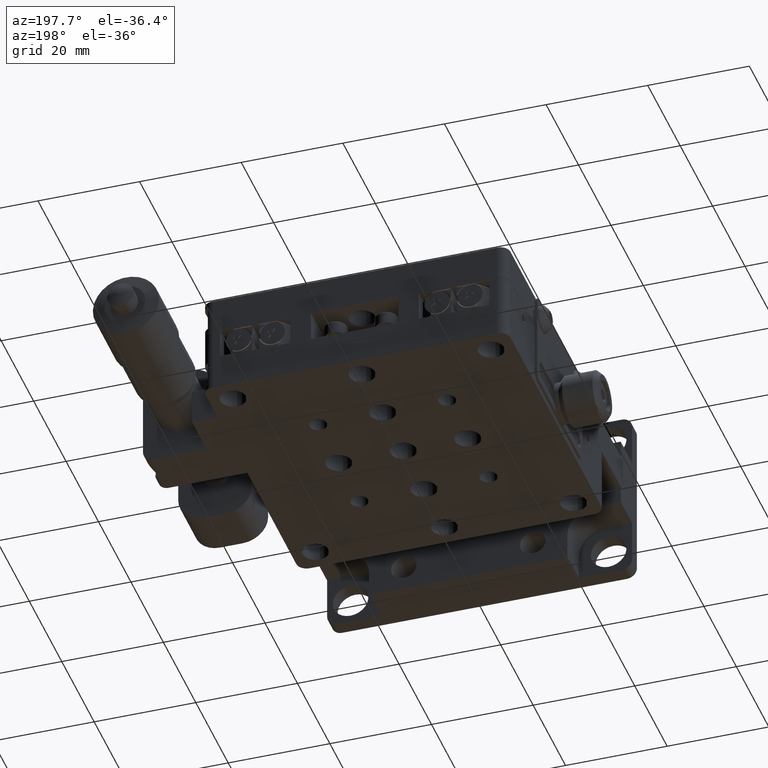
[diagram: clean part render]
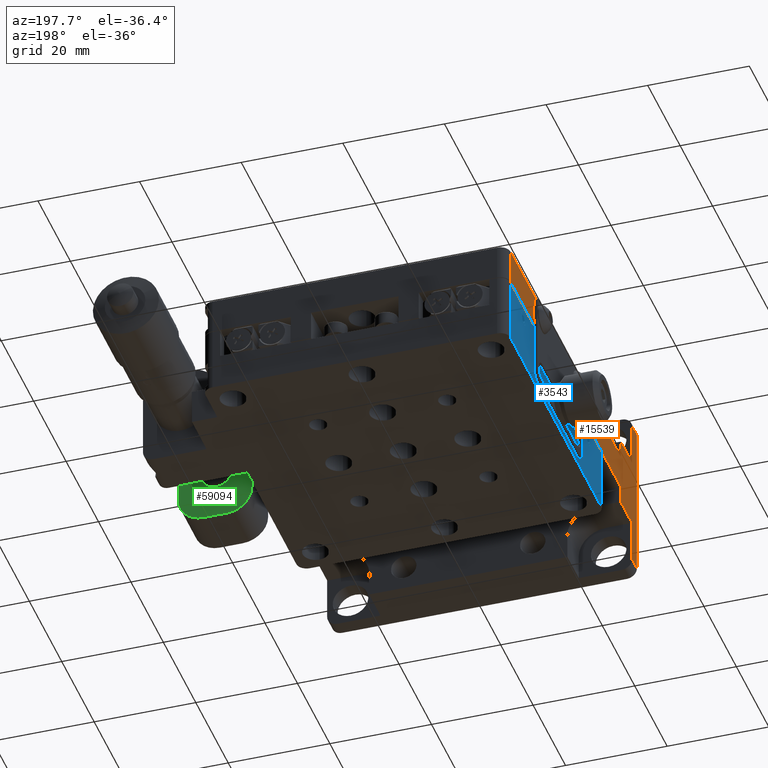
[diagram: same view with three faces highlighted in distinct colors, each labeled with its STEP entity id]
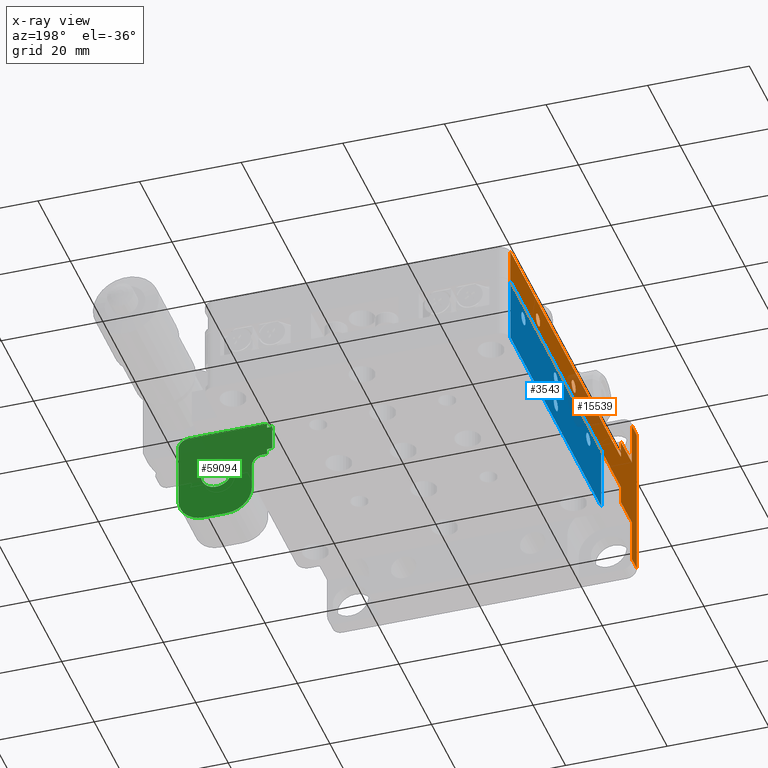
[diagram: x-ray of the same camera — body ghosted, the three highlighted faces saturated]
A machine part, auxiliary view with three faces highlighted in distinct colors.
The next image is the same camera in x-ray (body ghosted, the three faces saturated) — at least one of them is partly hidden behind the body in this view.
Their STEP definitions:

[orange] entity #15539 — the highlighted planar face has unit normal (1, 0, -0).
#170 = CARTESIAN_POINT ( 'NONE',  ( -30.00000000000000000, 29.00000000000000700, -0.4999999999996801400 ) ) ;
#2410 = VERTEX_POINT ( 'NONE', #57493 ) ;
#2924 = EDGE_CURVE ( 'NONE', #39045, #54760, #55046, .T. ) ;
#4068 = DIRECTION ( 'NONE',  ( -1.026956297779327700E-015, 1.000000000000000000, 1.059534132045691100E-014 ) ) ;
#4932 = DIRECTION ( 'NONE',  ( 1.000000000000000000, 1.026956297779341900E-015, -1.336419442155414700E-015 ) ) ;
#5149 = EDGE_CURVE ( 'NONE', #59992, #59439, #14396, .T. ) ;
#5325 = LINE ( 'NONE', #13381, #32409 ) ;
#6712 = LINE ( 'NONE', #32723, #35981 ) ;
#6784 = AXIS2_PLACEMENT_3D ( 'NONE', #31966, #40786, #12791 ) ;
#7963 = ORIENTED_EDGE ( 'NONE', *, *, #2924, .T. ) ;
#8512 = CIRCLE ( 'NONE', #18903, 1.249999999999990700 ) ;
#10334 = CIRCLE ( 'NONE', #6784, 1.249999999999987100 ) ;
#10519 = DIRECTION ( 'NONE',  ( 1.091490082325969300E-015, -1.299185760018476600E-014, -1.000000000000000000 ) ) ;
#10525 = CARTESIAN_POINT ( 'NONE',  ( -30.00000000000006000, -6.999999999999772600, 15.49999999999996800 ) ) ;
#10960 = EDGE_CURVE ( 'NONE', #43468, #51199, #41109, .T. ) ;
#11152 = DIRECTION ( 'NONE',  ( -1.026956297779327700E-015, 1.000000000000000000, 1.059534132045691100E-014 ) ) ;
#11304 = VERTEX_POINT ( 'NONE', #45035 ) ;
#11508 = DIRECTION ( 'NONE',  ( 1.026956297779327700E-015, -1.000000000000000000, -1.059534132045691100E-014 ) ) ;
#11922 = EDGE_LOOP ( 'NONE', ( #44451, #24397 ) ) ;
#12143 = EDGE_CURVE ( 'NONE', #39488, #11304, #10334, .T. ) ;
#12584 = CARTESIAN_POINT ( 'NONE',  ( -30.00000000000006000, -9.999999999999788600, 15.49999999999993800 ) ) ;
#12791 = DIRECTION ( 'NONE',  ( 0.0000000000000000000, -1.000000000000000000, -1.058181320345863200E-014 ) ) ;
#13221 = VECTOR ( 'NONE', #47486, 1000.000000000000000 ) ;
#13381 = CARTESIAN_POINT ( 'NONE',  ( -30.00000000000000000, -7.000000000000056800, -7.000000000000042600 ) ) ;
#13573 = CARTESIAN_POINT ( 'NONE',  ( -30.00000000000000000, 51.00000000000000700, -0.4999999999994478300 ) ) ;
#13980 = CARTESIAN_POINT ( 'NONE',  ( -30.00000000000000000, 1.217516921346730800E-013, 7.000000000000041700 ) ) ;
#14396 = LINE ( 'NONE', #15466, #29650 ) ;
#14952 = CARTESIAN_POINT ( 'NONE',  ( -29.99999999999993600, -7.000000000000163400, -15.50000000000004600 ) ) ;
#15119 = EDGE_LOOP ( 'NONE', ( #34626, #7963, #54953, #46326, #27960, #53234, #60846, #45271, #42608, #50538, #26469, #53047 ) ) ;
#15466 = CARTESIAN_POINT ( 'NONE',  ( -30.00000000000000000, 1.217516921346730800E-013, 7.000000000000041700 ) ) ;
#15539 = ADVANCED_FACE ( 'NONE', ( #21904, #53479, #41702 ), #28050, .F. ) ;
#17621 = CARTESIAN_POINT ( 'NONE',  ( -29.99999999999993600, -10.00000000000017900, -15.50000000000007800 ) ) ;
#17769 = EDGE_CURVE ( 'NONE', #35793, #53280, #42977, .T. ) ;
#18261 = DIRECTION ( 'NONE',  ( -1.026956297779327700E-015, 1.000000000000000000, 1.059534132045691100E-014 ) ) ;
#18500 = VECTOR ( 'NONE', #37574, 1000.000000000000000 ) ;
#18903 = AXIS2_PLACEMENT_3D ( 'NONE', #54827, #26273, #50090 ) ;
#20190 = AXIS2_PLACEMENT_3D ( 'NONE', #37855, #4932, #41602 ) ;
#20886 = CARTESIAN_POINT ( 'NONE',  ( -29.99999999999993600, -7.000000000000163400, -15.50000000000004800 ) ) ;
#20963 = DIRECTION ( 'NONE',  ( 1.026956297779327700E-015, -1.000000000000000000, -1.059534132045691100E-014 ) ) ;
#21084 = CARTESIAN_POINT ( 'NONE',  ( -30.00000000000000000, 7.628019053402616300E-014, 3.500000000000028000 ) ) ;
#21235 = VECTOR ( 'NONE', #11152, 1000.000000000000000 ) ;
#21662 = EDGE_CURVE ( 'NONE', #56999, #59439, #5325, .T. ) ;
#21904 = FACE_BOUND ( 'NONE', #39095, .T. ) ;
#22271 = VECTOR ( 'NONE', #49643, 1000.000000000000000 ) ;
#22499 = CARTESIAN_POINT ( 'NONE',  ( -30.00000000000000000, -7.000000000000056800, -7.000000000000042600 ) ) ;
#23506 = CARTESIAN_POINT ( 'NONE',  ( -29.99999999999993600, -7.000000000000198100, -17.50000000000008200 ) ) ;
#24397 = ORIENTED_EDGE ( 'NONE', *, *, #12143, .F. ) ;
#25102 = EDGE_CURVE ( 'NONE', #46332, #43468, #33229, .T. ) ;
#25491 = AXIS2_PLACEMENT_3D ( 'NONE', #170, #43336, #38819 ) ;
#26273 = DIRECTION ( 'NONE',  ( -1.000000000000000000, 1.026956297779323700E-015, 1.336419442155436600E-015 ) ) ;
#26469 = ORIENTED_EDGE ( 'NONE', *, *, #5149, .T. ) ;
#26832 = VERTEX_POINT ( 'NONE', #12584 ) ;
#26937 = EDGE_CURVE ( 'NONE', #38177, #51199, #53744, .T. ) ;
#27175 = VECTOR ( 'NONE', #20963, 1000.000000000000000 ) ;
#27960 = ORIENTED_EDGE ( 'NONE', *, *, #17769, .T. ) ;
#28050 = PLANE ( 'NONE',  #20190 ) ;
#28535 = CARTESIAN_POINT ( 'NONE',  ( -29.99999999999993600, -7.000000000000198100, -17.50000000000008200 ) ) ;
#28775 = CARTESIAN_POINT ( 'NONE',  ( -30.00000000000000000, 52.24999999999999300, -0.4999999999994383900 ) ) ;
#29650 = VECTOR ( 'NONE', #10519, 1000.000000000000000 ) ;
#31966 = CARTESIAN_POINT ( 'NONE',  ( -30.00000000000000000, 51.00000000000000700, -0.4999999999994478300 ) ) ;
#32202 = ORIENTED_EDGE ( 'NONE', *, *, #44060, .F. ) ;
#32409 = VECTOR ( 'NONE', #18261, 1000.000000000000000 ) ;
#32565 = DIRECTION ( 'NONE',  ( -1.000000000000000000, 1.026956297779323700E-015, 1.336419442155436600E-015 ) ) ;
#32723 = CARTESIAN_POINT ( 'NONE',  ( -30.00000000000000000, -6.999999999999879200, 6.999999999999969800 ) ) ;
#33229 = LINE ( 'NONE', #44883, #22271 ) ;
#33536 = EDGE_CURVE ( 'NONE', #2410, #40367, #45461, .T. ) ;
#34186 = LINE ( 'NONE', #53115, #57797 ) ;
#34626 = ORIENTED_EDGE ( 'NONE', *, *, #39313, .T. ) ;
#34991 = CARTESIAN_POINT ( 'NONE',  ( -30.00000000000000000, -6.013431426791375900E-014, -6.999999999999970700 ) ) ;
#35106 = LINE ( 'NONE', #37375, #51269 ) ;
#35793 = VERTEX_POINT ( 'NONE', #47102 ) ;
#35981 = VECTOR ( 'NONE', #4068, 1000.000000000000000 ) ;
#37375 = CARTESIAN_POINT ( 'NONE',  ( -29.99999999999993600, -10.00000000000021300, -17.50000000000007800 ) ) ;
#37574 = DIRECTION ( 'NONE',  ( 1.091490082325969300E-015, -1.299185760018475600E-014, -1.000000000000000000 ) ) ;
#37855 = CARTESIAN_POINT ( 'NONE',  ( -30.00000000000000000, -6.999999999999879200, 6.999999999999969800 ) ) ;
#38177 = VERTEX_POINT ( 'NONE', #45451 ) ;
#38545 = EDGE_CURVE ( 'NONE', #11304, #39488, #57602, .T. ) ;
#38819 = DIRECTION ( 'NONE',  ( 0.0000000000000000000, -1.000000000000000000, -1.058181320345860200E-014 ) ) ;
#39045 = VERTEX_POINT ( 'NONE', #20886 ) ;
#39095 = EDGE_LOOP ( 'NONE', ( #60283, #32202 ) ) ;
#39313 = EDGE_CURVE ( 'NONE', #56999, #39045, #50816, .T. ) ;
#39488 = VERTEX_POINT ( 'NONE', #28775 ) ;
#39721 = CARTESIAN_POINT ( 'NONE',  ( -30.00000000000012800, 68.00000000000000000, 3.500000000000747000 ) ) ;
#39872 = AXIS2_PLACEMENT_3D ( 'NONE', #13573, #32565, #42179 ) ;
#40119 = EDGE_CURVE ( 'NONE', #53280, #38177, #6712, .T. ) ;
#40367 = VERTEX_POINT ( 'NONE', #48516 ) ;
#40462 = CARTESIAN_POINT ( 'NONE',  ( -30.00000000000000000, -6.999999999999879200, 6.999999999999969800 ) ) ;
#40786 = DIRECTION ( 'NONE',  ( -1.000000000000000000, 1.026956297779323700E-015, 1.336419442155436600E-015 ) ) ;
#41109 = LINE ( 'NONE', #53814, #27175 ) ;
#41191 = VECTOR ( 'NONE', #51276, 1000.000000000000000 ) ;
#41528 = VECTOR ( 'NONE', #43264, 1000.000000000000000 ) ;
#41602 = DIRECTION ( 'NONE',  ( -1.026956297779327700E-015, 1.000000000000000000, 1.059534132045691100E-014 ) ) ;
#41702 = FACE_OUTER_BOUND ( 'NONE', #15119, .T. ) ;
#41954 = EDGE_CURVE ( 'NONE', #26832, #54760, #35106, .T. ) ;
#42179 = DIRECTION ( 'NONE',  ( 0.0000000000000000000, -1.000000000000000000, -1.058181320345863200E-014 ) ) ;
#42608 = ORIENTED_EDGE ( 'NONE', *, *, #25102, .F. ) ;
#42977 = LINE ( 'NONE', #28535, #41528 ) ;
#43264 = DIRECTION ( 'NONE',  ( 1.091490082325969300E-015, -1.299185760018475600E-014, -1.000000000000000000 ) ) ;
#43336 = DIRECTION ( 'NONE',  ( -1.000000000000000000, 1.026956297779323700E-015, 1.336419442155436600E-015 ) ) ;
#43394 = EDGE_CURVE ( 'NONE', #46332, #59992, #34186, .T. ) ;
#43468 = VERTEX_POINT ( 'NONE', #39721 ) ;
#44060 = EDGE_CURVE ( 'NONE', #40367, #2410, #8512, .T. ) ;
#44451 = ORIENTED_EDGE ( 'NONE', *, *, #38545, .F. ) ;
#44883 = CARTESIAN_POINT ( 'NONE',  ( -30.00000000000012800, 67.99999999999974400, -6.499999999999261900 ) ) ;
#45035 = CARTESIAN_POINT ( 'NONE',  ( -30.00000000000000000, 49.75000000000001400, -0.4999999999994610400 ) ) ;
#45271 = ORIENTED_EDGE ( 'NONE', *, *, #10960, .F. ) ;
#45451 = CARTESIAN_POINT ( 'NONE',  ( -30.00000000000000000, 1.217516921346730800E-013, 7.000000000000041700 ) ) ;
#45461 = CIRCLE ( 'NONE', #25491, 1.249999999999990700 ) ;
#46326 = ORIENTED_EDGE ( 'NONE', *, *, #55620, .T. ) ;
#46332 = VERTEX_POINT ( 'NONE', #56569 ) ;
#47102 = CARTESIAN_POINT ( 'NONE',  ( -30.00000000000006000, -6.999999999999772600, 15.49999999999996600 ) ) ;
#47486 = DIRECTION ( 'NONE',  ( 1.026956297779327700E-015, -1.000000000000000000, -1.059534132045691100E-014 ) ) ;
#48339 = LINE ( 'NONE', #10525, #21235 ) ;
#48516 = CARTESIAN_POINT ( 'NONE',  ( -30.00000000000000000, 30.25000000000000000, -0.4999999999996707600 ) ) ;
#49643 = DIRECTION ( 'NONE',  ( -1.091490082325969300E-015, 1.299185760018475600E-014, 1.000000000000000000 ) ) ;
#50090 = DIRECTION ( 'NONE',  ( 0.0000000000000000000, -1.000000000000000000, -1.058181320345860200E-014 ) ) ;
#50538 = ORIENTED_EDGE ( 'NONE', *, *, #43394, .T. ) ;
#50816 = LINE ( 'NONE', #23506, #18500 ) ;
#51199 = VERTEX_POINT ( 'NONE', #21084 ) ;
#51269 = VECTOR ( 'NONE', #51615, 1000.000000000000000 ) ;
#51276 = DIRECTION ( 'NONE',  ( 1.091490082325969300E-015, -1.299185760018476600E-014, -1.000000000000000000 ) ) ;
#51615 = DIRECTION ( 'NONE',  ( 1.091490082325969300E-015, -1.299185760018475600E-014, -1.000000000000000000 ) ) ;
#52070 = CARTESIAN_POINT ( 'NONE',  ( -30.00000000000000000, -1.466281266726734200E-014, -3.499999999999987100 ) ) ;
#53047 = ORIENTED_EDGE ( 'NONE', *, *, #21662, .F. ) ;
#53115 = CARTESIAN_POINT ( 'NONE',  ( -30.00000000000012800, 70.00000000000000000, -3.499999999999244600 ) ) ;
#53234 = ORIENTED_EDGE ( 'NONE', *, *, #40119, .T. ) ;
#53280 = VERTEX_POINT ( 'NONE', #40462 ) ;
#53479 = FACE_BOUND ( 'NONE', #11922, .T. ) ;
#53744 = LINE ( 'NONE', #13980, #41191 ) ;
#53814 = CARTESIAN_POINT ( 'NONE',  ( -30.00000000000012800, 70.00000000000000000, 3.500000000000775400 ) ) ;
#54760 = VERTEX_POINT ( 'NONE', #17621 ) ;
#54827 = CARTESIAN_POINT ( 'NONE',  ( -30.00000000000000000, 29.00000000000000700, -0.4999999999996801400 ) ) ;
#54953 = ORIENTED_EDGE ( 'NONE', *, *, #41954, .F. ) ;
#55046 = LINE ( 'NONE', #14952, #13221 ) ;
#55620 = EDGE_CURVE ( 'NONE', #26832, #35793, #48339, .T. ) ;
#56569 = CARTESIAN_POINT ( 'NONE',  ( -30.00000000000012800, 68.00000000000000000, -3.499999999999266400 ) ) ;
#56999 = VERTEX_POINT ( 'NONE', #22499 ) ;
#57493 = CARTESIAN_POINT ( 'NONE',  ( -30.00000000000000000, 27.75000000000001800, -0.4999999999996934100 ) ) ;
#57602 = CIRCLE ( 'NONE', #39872, 1.249999999999987100 ) ;
#57797 = VECTOR ( 'NONE', #11508, 1000.000000000000000 ) ;
#59439 = VERTEX_POINT ( 'NONE', #34991 ) ;
#59992 = VERTEX_POINT ( 'NONE', #52070 ) ;
#60283 = ORIENTED_EDGE ( 'NONE', *, *, #33536, .F. ) ;
#60846 = ORIENTED_EDGE ( 'NONE', *, *, #26937, .T. ) ;

[blue] entity #3543 — the highlighted planar face has unit normal (1, 0, -0).
#7 = CARTESIAN_POINT ( 'NONE',  ( -30.00000000000014200, 18.74999999999995700, -6.500000000056101800 ) ) ;
#646 = EDGE_CURVE ( 'NONE', #10386, #1062, #38372, .T. ) ;
#1062 = VERTEX_POINT ( 'NONE', #13760 ) ;
#1143 = ORIENTED_EDGE ( 'NONE', *, *, #44110, .F. ) ;
#1414 = CARTESIAN_POINT ( 'NONE',  ( -30.00000000000003200, 59.99999999999989300, -6.500000000055667500 ) ) ;
#1777 = ORIENTED_EDGE ( 'NONE', *, *, #25466, .F. ) ;
#1868 = EDGE_LOOP ( 'NONE', ( #32736, #59966, #26244, #52904 ) ) ;
#1997 = VERTEX_POINT ( 'NONE', #47906 ) ;
#2008 = CARTESIAN_POINT ( 'NONE',  ( -30.00000000000013900, 19.99999999999994300, -6.500000000056087600 ) ) ;
#2601 = AXIS2_PLACEMENT_3D ( 'NONE', #39661, #44601, #43968 ) ;
#3164 = ORIENTED_EDGE ( 'NONE', *, *, #9762, .F. ) ;
#3258 = CARTESIAN_POINT ( 'NONE',  ( -30.00000000000003200, 59.99999999999989300, -6.500000000055667500 ) ) ;
#3543 = ADVANCED_FACE ( 'NONE', ( #52008, #8723, #44624, #23389, #3588 ), #41515, .F. ) ;
#3588 = FACE_OUTER_BOUND ( 'NONE', #1868, .T. ) ;
#3737 = DIRECTION ( 'NONE',  ( -1.000000000000000000, -1.843306323551447300E-015, 2.235232192376117500E-015 ) ) ;
#3854 = DIRECTION ( 'NONE',  ( -2.775557561562920100E-015, -1.000000000000000000, -1.110223024625168100E-014 ) ) ;
#5311 = DIRECTION ( 'NONE',  ( -2.775557561562920100E-015, -1.000000000000000000, -1.110223024625168100E-014 ) ) ;
#7204 = AXIS2_PLACEMENT_3D ( 'NONE', #31774, #3737, #22957 ) ;
#8723 = FACE_BOUND ( 'NONE', #37806, .T. ) ;
#8873 = VERTEX_POINT ( 'NONE', #43036 ) ;
#9362 = CIRCLE ( 'NONE', #48178, 1.249999999999987100 ) ;
#9762 = EDGE_CURVE ( 'NONE', #11786, #28339, #43855, .T. ) ;
#10346 = AXIS2_PLACEMENT_3D ( 'NONE', #50993, #41122, #13305 ) ;
#10386 = VERTEX_POINT ( 'NONE', #7 ) ;
#10431 = DIRECTION ( 'NONE',  ( -2.775557561562920100E-015, -1.000000000000000000, -1.110223024625168100E-014 ) ) ;
#10767 = VECTOR ( 'NONE', #23357, 1000.000000000000000 ) ;
#11786 = VERTEX_POINT ( 'NONE', #23022 ) ;
#12321 = VECTOR ( 'NONE', #46902, 1000.000000000000000 ) ;
#13305 = DIRECTION ( 'NONE',  ( -7.954039436656698300E-016, -1.138381519946932700E-014, -1.000000000000000000 ) ) ;
#13760 = CARTESIAN_POINT ( 'NONE',  ( -30.00000000000014200, 21.24999999999993200, -6.500000000056076900 ) ) ;
#14013 = VERTEX_POINT ( 'NONE', #48532 ) ;
#14167 = CARTESIAN_POINT ( 'NONE',  ( -30.00000000000004300, 67.99999999999991500, -3.600000000055520600 ) ) ;
#15199 = EDGE_CURVE ( 'NONE', #15206, #55820, #49884, .T. ) ;
#15206 = VERTEX_POINT ( 'NONE', #39980 ) ;
#15369 = DIRECTION ( 'NONE',  ( -1.000000000000000000, -1.843306323551447300E-015, 2.235232192376117500E-015 ) ) ;
#18547 = EDGE_CURVE ( 'NONE', #14013, #55820, #55584, .T. ) ;
#19215 = AXIS2_PLACEMENT_3D ( 'NONE', #54127, #26378, #59296 ) ;
#19632 = ORIENTED_EDGE ( 'NONE', *, *, #646, .F. ) ;
#20849 = DIRECTION ( 'NONE',  ( -2.775557561562920100E-015, -1.000000000000000000, -1.110223024625168100E-014 ) ) ;
#22472 = CARTESIAN_POINT ( 'NONE',  ( -30.00000000000008500, 39.99999999999989300, -6.500000000055878000 ) ) ;
#22957 = DIRECTION ( 'NONE',  ( -2.775557561562920100E-015, -1.000000000000000000, -1.110223024625168100E-014 ) ) ;
#23022 = CARTESIAN_POINT ( 'NONE',  ( -30.00000000000014600, 41.24999999999987900, -12.50000000005586600 ) ) ;
#23345 = CARTESIAN_POINT ( 'NONE',  ( -30.00000000000008900, 41.24999999999988600, -6.500000000055867300 ) ) ;
#23357 = DIRECTION ( 'NONE',  ( -1.598385052787001000E-015, -1.000000000000000000, -1.092122227254218000E-014 ) ) ;
#23389 = FACE_BOUND ( 'NONE', #56408, .T. ) ;
#23870 = ORIENTED_EDGE ( 'NONE', *, *, #48022, .F. ) ;
#23892 = DIRECTION ( 'NONE',  ( -1.598385052787001000E-015, -1.000000000000000000, -1.092122227254218000E-014 ) ) ;
#24531 = CARTESIAN_POINT ( 'NONE',  ( -30.00000000000014200, 39.99999999999988600, -12.50000000005587400 ) ) ;
#25257 = EDGE_CURVE ( 'NONE', #57934, #1997, #32545, .T. ) ;
#25466 = EDGE_CURVE ( 'NONE', #45840, #46494, #38368, .T. ) ;
#26244 = ORIENTED_EDGE ( 'NONE', *, *, #27478, .F. ) ;
#26378 = DIRECTION ( 'NONE',  ( -1.000000000000000000, -1.843306323551447300E-015, 2.235232192376117500E-015 ) ) ;
#26970 = CIRCLE ( 'NONE', #37426, 1.249999999999987100 ) ;
#27478 = EDGE_CURVE ( 'NONE', #8873, #15206, #58937, .T. ) ;
#28339 = VERTEX_POINT ( 'NONE', #41758 ) ;
#31074 = DIRECTION ( 'NONE',  ( -2.775557561562920100E-015, -1.000000000000000000, -1.110223024625168100E-014 ) ) ;
#31470 = VECTOR ( 'NONE', #49682, 1000.000000000000000 ) ;
#31774 = CARTESIAN_POINT ( 'NONE',  ( -30.00000000000013900, 19.99999999999994300, -6.500000000056087600 ) ) ;
#32545 = CIRCLE ( 'NONE', #41740, 1.249999999999987100 ) ;
#32736 = ORIENTED_EDGE ( 'NONE', *, *, #18547, .T. ) ;
#32889 = EDGE_LOOP ( 'NONE', ( #34035, #1777 ) ) ;
#34035 = ORIENTED_EDGE ( 'NONE', *, *, #48999, .F. ) ;
#34163 = CIRCLE ( 'NONE', #2601, 1.249999999999987100 ) ;
#37218 = AXIS2_PLACEMENT_3D ( 'NONE', #2008, #48317, #20849 ) ;
#37426 = AXIS2_PLACEMENT_3D ( 'NONE', #24531, #15369, #10431 ) ;
#37806 = EDGE_LOOP ( 'NONE', ( #39058, #46334 ) ) ;
#38368 = CIRCLE ( 'NONE', #44902, 1.249999999999987100 ) ;
#38372 = CIRCLE ( 'NONE', #37218, 1.249999999999987100 ) ;
#39058 = ORIENTED_EDGE ( 'NONE', *, *, #25257, .F. ) ;
#39250 = CIRCLE ( 'NONE', #7204, 1.249999999999987100 ) ;
#39661 = CARTESIAN_POINT ( 'NONE',  ( -30.00000000000008500, 39.99999999999989300, -6.500000000055878000 ) ) ;
#39980 = CARTESIAN_POINT ( 'NONE',  ( -30.00000000000015600, 12.00000000000000700, -3.600000000056125900 ) ) ;
#40104 = DIRECTION ( 'NONE',  ( -1.000000000000000000, -1.843306323551447300E-015, 2.235232192376117500E-015 ) ) ;
#41122 = DIRECTION ( 'NONE',  ( 1.000000000000000000, 1.843306323551463100E-015, -7.954039436656908300E-016 ) ) ;
#41515 = PLANE ( 'NONE',  #10346 ) ;
#41740 = AXIS2_PLACEMENT_3D ( 'NONE', #3258, #40104, #31074 ) ;
#41758 = CARTESIAN_POINT ( 'NONE',  ( -30.00000000000014600, 38.74999999999990100, -12.50000000005588600 ) ) ;
#43036 = CARTESIAN_POINT ( 'NONE',  ( -30.00000000000008200, 67.99999999999991500, -3.600000000055548500 ) ) ;
#43855 = CIRCLE ( 'NONE', #19215, 1.249999999999987100 ) ;
#43968 = DIRECTION ( 'NONE',  ( -2.775557561562920100E-015, -1.000000000000000000, -1.110223024625168100E-014 ) ) ;
#44110 = EDGE_CURVE ( 'NONE', #1062, #10386, #39250, .T. ) ;
#44601 = DIRECTION ( 'NONE',  ( -1.000000000000000000, -1.843306323551447300E-015, 2.235232192376117500E-015 ) ) ;
#44624 = FACE_BOUND ( 'NONE', #32889, .T. ) ;
#44902 = AXIS2_PLACEMENT_3D ( 'NONE', #22472, #60115, #3854 ) ;
#45840 = VERTEX_POINT ( 'NONE', #23345 ) ;
#46334 = ORIENTED_EDGE ( 'NONE', *, *, #60074, .F. ) ;
#46494 = VERTEX_POINT ( 'NONE', #57998 ) ;
#46902 = DIRECTION ( 'NONE',  ( -2.102497911610985400E-015, -1.138381519946933100E-014, -1.000000000000000000 ) ) ;
#47357 = CARTESIAN_POINT ( 'NONE',  ( -30.00000000000003600, 58.74999999999990800, -6.500000000055681700 ) ) ;
#47906 = CARTESIAN_POINT ( 'NONE',  ( -30.00000000000003600, 61.24999999999987900, -6.500000000055657700 ) ) ;
#48022 = EDGE_CURVE ( 'NONE', #28339, #11786, #26970, .T. ) ;
#48178 = AXIS2_PLACEMENT_3D ( 'NONE', #1414, #52267, #5311 ) ;
#48317 = DIRECTION ( 'NONE',  ( -1.000000000000000000, -1.843306323551447300E-015, 2.235232192376117500E-015 ) ) ;
#48471 = VECTOR ( 'NONE', #23892, 1000.000000000000000 ) ;
#48532 = CARTESIAN_POINT ( 'NONE',  ( -30.00000000000007500, 67.99999999999990100, -16.50000000005555000 ) ) ;
#48999 = EDGE_CURVE ( 'NONE', #46494, #45840, #34163, .T. ) ;
#49479 = CARTESIAN_POINT ( 'NONE',  ( -30.00000000000015600, 12.00000000000000700, -3.600000000056125900 ) ) ;
#49682 = DIRECTION ( 'NONE',  ( -2.102497911610985400E-015, -1.138381519946933100E-014, -1.000000000000000000 ) ) ;
#49884 = LINE ( 'NONE', #49479, #31470 ) ;
#50874 = CARTESIAN_POINT ( 'NONE',  ( -30.00000000000004300, 69.99999999999987200, -16.50000000005555700 ) ) ;
#50993 = CARTESIAN_POINT ( 'NONE',  ( -30.00000000000002800, 69.99999999999990100, -3.600000000055548500 ) ) ;
#51009 = EDGE_LOOP ( 'NONE', ( #23870, #3164 ) ) ;
#51887 = LINE ( 'NONE', #14167, #12321 ) ;
#52008 = FACE_BOUND ( 'NONE', #51009, .T. ) ;
#52267 = DIRECTION ( 'NONE',  ( -1.000000000000000000, -1.843306323551447300E-015, 2.235232192376117500E-015 ) ) ;
#52904 = ORIENTED_EDGE ( 'NONE', *, *, #60022, .T. ) ;
#54127 = CARTESIAN_POINT ( 'NONE',  ( -30.00000000000014200, 39.99999999999988600, -12.50000000005587400 ) ) ;
#55048 = CARTESIAN_POINT ( 'NONE',  ( -30.00000000000018500, 11.99999999999979200, -16.50000000005618300 ) ) ;
#55584 = LINE ( 'NONE', #50874, #10767 ) ;
#55820 = VERTEX_POINT ( 'NONE', #55048 ) ;
#56392 = CARTESIAN_POINT ( 'NONE',  ( -30.00000000000002800, 69.99999999999990100, -3.600000000055548500 ) ) ;
#56408 = EDGE_LOOP ( 'NONE', ( #19632, #1143 ) ) ;
#57934 = VERTEX_POINT ( 'NONE', #47357 ) ;
#57998 = CARTESIAN_POINT ( 'NONE',  ( -30.00000000000008900, 38.74999999999990800, -6.500000000055891300 ) ) ;
#58937 = LINE ( 'NONE', #56392, #48471 ) ;
#59296 = DIRECTION ( 'NONE',  ( -2.775557561562920100E-015, -1.000000000000000000, -1.110223024625168100E-014 ) ) ;
#59966 = ORIENTED_EDGE ( 'NONE', *, *, #15199, .F. ) ;
#60022 = EDGE_CURVE ( 'NONE', #8873, #14013, #51887, .T. ) ;
#60074 = EDGE_CURVE ( 'NONE', #1997, #57934, #9362, .T. ) ;
#60115 = DIRECTION ( 'NONE',  ( -1.000000000000000000, -1.843306323551447300E-015, 2.235232192376117500E-015 ) ) ;

[green] entity #59094 — the highlighted planar face has unit normal (0, 1, -0).
#130 = DIRECTION ( 'NONE',  ( 1.000000000000000000, 0.0000000000000000000, 0.0000000000000000000 ) ) ;
#579 = VECTOR ( 'NONE', #59086, 1000.000000000000000 ) ;
#704 = LINE ( 'NONE', #42405, #35805 ) ;
#1245 = ORIENTED_EDGE ( 'NONE', *, *, #53139, .T. ) ;
#1455 = LINE ( 'NONE', #6651, #46883 ) ;
#2058 = ORIENTED_EDGE ( 'NONE', *, *, #32100, .T. ) ;
#2175 = CARTESIAN_POINT ( 'NONE',  ( 38.00000000000006400, 30.00000000000008200, -10.47140520965587200 ) ) ;
#2781 = DIRECTION ( 'NONE',  ( 1.000000000000000000, 0.0000000000000000000, 0.0000000000000000000 ) ) ;
#2887 = VERTEX_POINT ( 'NONE', #51445 ) ;
#2993 = AXIS2_PLACEMENT_3D ( 'NONE', #35098, #39799, #44532 ) ;
#4021 = CARTESIAN_POINT ( 'NONE',  ( 47.50000000000006400, 30.00000000000008200, -10.47140520965587200 ) ) ;
#4450 = CIRCLE ( 'NONE', #34884, 3.000000000000002700 ) ;
#4586 = DIRECTION ( 'NONE',  ( 0.0000000000000000000, 1.517004071223946000E-015, 1.000000000000000000 ) ) ;
#4924 = DIRECTION ( 'NONE',  ( 1.000000000000000000, 0.0000000000000000000, 0.0000000000000000000 ) ) ;
#4945 = VERTEX_POINT ( 'NONE', #31604 ) ;
#5631 = CARTESIAN_POINT ( 'NONE',  ( 40.00000000000005700, 30.00000000000008900, -5.871405209655875100 ) ) ;
#6005 = VERTEX_POINT ( 'NONE', #38266 ) ;
#6107 = CARTESIAN_POINT ( 'NONE',  ( 30.00000000000006000, 30.00000000000000700, -2.371405209655856900 ) ) ;
#6255 = ORIENTED_EDGE ( 'NONE', *, *, #58475, .T. ) ;
#6651 = CARTESIAN_POINT ( 'NONE',  ( 38.00000000000006400, 29.99999999999998600, -15.47140520965585300 ) ) ;
#6894 = VERTEX_POINT ( 'NONE', #25719 ) ;
#7201 = EDGE_CURVE ( 'NONE', #6894, #29072, #37577, .T. ) ;
#7462 = VERTEX_POINT ( 'NONE', #10113 ) ;
#7748 = CARTESIAN_POINT ( 'NONE',  ( 29.00000000000006000, 30.00000000000001400, 2.628594790344141800 ) ) ;
#9194 = LINE ( 'NONE', #57955, #51715 ) ;
#9249 = DIRECTION ( 'NONE',  ( 0.0000000000000000000, 1.000000000000000000, -1.517004071223945800E-015 ) ) ;
#10113 = CARTESIAN_POINT ( 'NONE',  ( 31.00000000000006400, 30.00000000000009600, -3.471405209655857400 ) ) ;
#10281 = DIRECTION ( 'NONE',  ( -1.000000000000000000, 2.631582575504568600E-030, 1.734723475976805500E-015 ) ) ;
#10821 = DIRECTION ( 'NONE',  ( -1.000000000000000000, -1.315791287752285500E-030, -8.673617379884035500E-016 ) ) ;
#11696 = FACE_OUTER_BOUND ( 'NONE', #43693, .T. ) ;
#12726 = CIRCLE ( 'NONE', #52417, 5.000000000000004400 ) ;
#12940 = VERTEX_POINT ( 'NONE', #50646 ) ;
#13027 = CIRCLE ( 'NONE', #58214, 3.000000000000002700 ) ;
#13297 = AXIS2_PLACEMENT_3D ( 'NONE', #51883, #51679, #4924 ) ;
#13649 = LINE ( 'NONE', #24184, #55509 ) ;
#14441 = CARTESIAN_POINT ( 'NONE',  ( 30.00000000000006000, 30.00000000000001400, 2.628594790344140900 ) ) ;
#14812 = LINE ( 'NONE', #6107, #26522 ) ;
#15113 = EDGE_CURVE ( 'NONE', #20419, #20606, #1455, .T. ) ;
#15209 = ORIENTED_EDGE ( 'NONE', *, *, #46517, .T. ) ;
#15239 = LINE ( 'NONE', #16784, #579 ) ;
#15516 = EDGE_CURVE ( 'NONE', #17535, #6894, #704, .T. ) ;
#16784 = CARTESIAN_POINT ( 'NONE',  ( 29.00000000000006000, 30.00000000000000700, -2.371405209655858700 ) ) ;
#17377 = ORIENTED_EDGE ( 'NONE', *, *, #15113, .T. ) ;
#17535 = VERTEX_POINT ( 'NONE', #7748 ) ;
#17825 = EDGE_LOOP ( 'NONE', ( #27242, #56479 ) ) ;
#19749 = CARTESIAN_POINT ( 'NONE',  ( 30.00000000000006000, 30.00000000000009600, -3.471405209655855600 ) ) ;
#20419 = VERTEX_POINT ( 'NONE', #53800 ) ;
#20606 = VERTEX_POINT ( 'NONE', #45054 ) ;
#20614 = CARTESIAN_POINT ( 'NONE',  ( 33.00000000000006400, 30.00000000000000000, -5.471405209655873800 ) ) ;
#21878 = VERTEX_POINT ( 'NONE', #42987 ) ;
#21890 = CARTESIAN_POINT ( 'NONE',  ( 42.50000000000005700, 30.00000000000008200, -10.47140520965587200 ) ) ;
#22144 = EDGE_CURVE ( 'NONE', #49918, #50739, #13027, .T. ) ;
#22336 = LINE ( 'NONE', #59318, #24499 ) ;
#22875 = EDGE_CURVE ( 'NONE', #7462, #45137, #13649, .T. ) ;
#23493 = VERTEX_POINT ( 'NONE', #4021 ) ;
#24184 = CARTESIAN_POINT ( 'NONE',  ( 30.00000000000006000, 30.00000000000009600, -3.471405209655855600 ) ) ;
#24455 = VECTOR ( 'NONE', #4586, 1000.000000000000000 ) ;
#24499 = VECTOR ( 'NONE', #55159, 1000.000000000000000 ) ;
#24834 = DIRECTION ( 'NONE',  ( 0.0000000000000000000, 1.000000000000000000, -1.517004071223945800E-015 ) ) ;
#25648 = CIRCLE ( 'NONE', #2993, 2.000000000000001800 ) ;
#25719 = CARTESIAN_POINT ( 'NONE',  ( 30.00000000000006000, 30.00000000000001400, 2.628594790344140900 ) ) ;
#26316 = ORIENTED_EDGE ( 'NONE', *, *, #15516, .T. ) ;
#26522 = VECTOR ( 'NONE', #10821, 1000.000000000000000 ) ;
#26601 = DIRECTION ( 'NONE',  ( 1.000000000000000000, 0.0000000000000000000, 0.0000000000000000000 ) ) ;
#27142 = CARTESIAN_POINT ( 'NONE',  ( 30.00000000000006000, 30.00000000000009600, -3.471405209655855600 ) ) ;
#27242 = ORIENTED_EDGE ( 'NONE', *, *, #40835, .F. ) ;
#27639 = CARTESIAN_POINT ( 'NONE',  ( 45.50000000000006400, 30.00000000000001400, 1.528594790344141000 ) ) ;
#28220 = PLANE ( 'NONE',  #35942 ) ;
#28752 = LINE ( 'NONE', #27142, #31706 ) ;
#29072 = VERTEX_POINT ( 'NONE', #42279 ) ;
#29332 = CARTESIAN_POINT ( 'NONE',  ( 40.00000000000005700, 30.00000000000008900, -5.871405209655875100 ) ) ;
#30205 = EDGE_CURVE ( 'NONE', #12940, #17535, #15239, .T. ) ;
#31604 = CARTESIAN_POINT ( 'NONE',  ( 30.00000000000006000, 30.00000000000000700, -2.371405209655856900 ) ) ;
#31706 = VECTOR ( 'NONE', #45390, 1000.000000000000000 ) ;
#32100 = EDGE_CURVE ( 'NONE', #4945, #12940, #14812, .T. ) ;
#32553 = CIRCLE ( 'NONE', #13297, 2.000000000000001800 ) ;
#34884 = AXIS2_PLACEMENT_3D ( 'NONE', #29332, #24834, #47811 ) ;
#35098 = CARTESIAN_POINT ( 'NONE',  ( 45.50000000000006400, 30.00000000000001400, 1.528594790344141000 ) ) ;
#35503 = DIRECTION ( 'NONE',  ( 0.0000000000000000000, 1.000000000000000000, -1.517004071223945800E-015 ) ) ;
#35597 = ORIENTED_EDGE ( 'NONE', *, *, #39251, .T. ) ;
#35805 = VECTOR ( 'NONE', #51287, 1000.000000000000000 ) ;
#35942 = AXIS2_PLACEMENT_3D ( 'NONE', #27639, #9249, #41383 ) ;
#36762 = ORIENTED_EDGE ( 'NONE', *, *, #7201, .T. ) ;
#37577 = LINE ( 'NONE', #14441, #24455 ) ;
#38185 = EDGE_CURVE ( 'NONE', #2887, #23493, #22336, .T. ) ;
#38266 = CARTESIAN_POINT ( 'NONE',  ( 33.00000000000006400, 30.00000000000008200, -10.47140520965587200 ) ) ;
#38740 = DIRECTION ( 'NONE',  ( -1.000000000000000000, 0.0000000000000000000, 0.0000000000000000000 ) ) ;
#38981 = ORIENTED_EDGE ( 'NONE', *, *, #50456, .T. ) ;
#39251 = EDGE_CURVE ( 'NONE', #23493, #20419, #43380, .T. ) ;
#39637 = LINE ( 'NONE', #20614, #44781 ) ;
#39799 = DIRECTION ( 'NONE',  ( 0.0000000000000000000, 1.000000000000000000, -1.517004071223945800E-015 ) ) ;
#40835 = EDGE_CURVE ( 'NONE', #50739, #49918, #4450, .T. ) ;
#41383 = DIRECTION ( 'NONE',  ( 1.000000000000000000, 0.0000000000000000000, 0.0000000000000000000 ) ) ;
#42279 = CARTESIAN_POINT ( 'NONE',  ( 30.00000000000006000, 30.00000000000001400, 3.528594790344142100 ) ) ;
#42405 = CARTESIAN_POINT ( 'NONE',  ( 29.00000000000006000, 30.00000000000001400, 2.628594790344141800 ) ) ;
#42940 = VERTEX_POINT ( 'NONE', #43308 ) ;
#42987 = CARTESIAN_POINT ( 'NONE',  ( 45.50000000000006400, 30.00000000000001400, 3.528594790344140800 ) ) ;
#43308 = CARTESIAN_POINT ( 'NONE',  ( 33.00000000000006400, 30.00000000000000000, -5.471405209655873800 ) ) ;
#43380 = CIRCLE ( 'NONE', #47824, 4.999999999999997300 ) ;
#43693 = EDGE_LOOP ( 'NONE', ( #60953, #2058, #54967, #26316, #36762, #59999, #6255, #50746, #35597, #17377, #15209, #1245, #38981, #45094 ) ) ;
#44081 = DIRECTION ( 'NONE',  ( 1.000000000000000000, -5.228678685805948200E-033, -3.446713680595041300E-018 ) ) ;
#44473 = CARTESIAN_POINT ( 'NONE',  ( 37.00000000000005700, 30.00000000000008900, -5.871405209655856400 ) ) ;
#44532 = DIRECTION ( 'NONE',  ( 1.000000000000000000, 0.0000000000000000000, 0.0000000000000000000 ) ) ;
#44781 = VECTOR ( 'NONE', #49337, 1000.000000000000000 ) ;
#45054 = CARTESIAN_POINT ( 'NONE',  ( 38.00000000000006400, 29.99999999999998600, -15.47140520965585300 ) ) ;
#45094 = ORIENTED_EDGE ( 'NONE', *, *, #22875, .T. ) ;
#45137 = VERTEX_POINT ( 'NONE', #19749 ) ;
#45390 = DIRECTION ( 'NONE',  ( 0.0000000000000000000, 1.517004071223945800E-015, 1.000000000000000000 ) ) ;
#46517 = EDGE_CURVE ( 'NONE', #20606, #6005, #12726, .T. ) ;
#46883 = VECTOR ( 'NONE', #38740, 1000.000000000000000 ) ;
#47796 = CARTESIAN_POINT ( 'NONE',  ( 43.00000000000005700, 30.00000000000008900, -5.871405209655875100 ) ) ;
#47811 = DIRECTION ( 'NONE',  ( 1.000000000000000000, 0.0000000000000000000, 0.0000000000000000000 ) ) ;
#47824 = AXIS2_PLACEMENT_3D ( 'NONE', #21890, #54740, #26601 ) ;
#49337 = DIRECTION ( 'NONE',  ( 1.734723475976808100E-016, 1.517004071223945800E-015, 1.000000000000000000 ) ) ;
#49918 = VERTEX_POINT ( 'NONE', #44473 ) ;
#50174 = EDGE_CURVE ( 'NONE', #29072, #21878, #9194, .T. ) ;
#50456 = EDGE_CURVE ( 'NONE', #42940, #7462, #32553, .T. ) ;
#50572 = FACE_BOUND ( 'NONE', #17825, .T. ) ;
#50646 = CARTESIAN_POINT ( 'NONE',  ( 29.00000000000006000, 30.00000000000000700, -2.371405209655858700 ) ) ;
#50739 = VERTEX_POINT ( 'NONE', #47796 ) ;
#50746 = ORIENTED_EDGE ( 'NONE', *, *, #38185, .T. ) ;
#50747 = DIRECTION ( 'NONE',  ( 0.0000000000000000000, 1.000000000000000000, -1.517004071223945800E-015 ) ) ;
#51287 = DIRECTION ( 'NONE',  ( 1.000000000000000000, -1.315791287752285500E-030, -8.673617379884035500E-016 ) ) ;
#51445 = CARTESIAN_POINT ( 'NONE',  ( 47.50000000000006400, 30.00000000000001400, 1.528594790344140800 ) ) ;
#51679 = DIRECTION ( 'NONE',  ( 0.0000000000000000000, -1.000000000000000000, 1.517004071223945800E-015 ) ) ;
#51715 = VECTOR ( 'NONE', #44081, 1000.000000000000000 ) ;
#51723 = EDGE_CURVE ( 'NONE', #45137, #4945, #28752, .T. ) ;
#51883 = CARTESIAN_POINT ( 'NONE',  ( 31.00000000000006400, 30.00000000000000000, -5.471405209655873800 ) ) ;
#52417 = AXIS2_PLACEMENT_3D ( 'NONE', #2175, #35503, #2781 ) ;
#53139 = EDGE_CURVE ( 'NONE', #6005, #42940, #39637, .T. ) ;
#53800 = CARTESIAN_POINT ( 'NONE',  ( 42.50000000000005700, 29.99999999999998600, -15.47140520965585300 ) ) ;
#54740 = DIRECTION ( 'NONE',  ( 0.0000000000000000000, 1.000000000000000000, -1.517004071223945800E-015 ) ) ;
#54967 = ORIENTED_EDGE ( 'NONE', *, *, #30205, .T. ) ;
#55159 = DIRECTION ( 'NONE',  ( -1.445602896647339700E-016, -1.517004071223945800E-015, -1.000000000000000000 ) ) ;
#55509 = VECTOR ( 'NONE', #10281, 1000.000000000000000 ) ;
#56479 = ORIENTED_EDGE ( 'NONE', *, *, #22144, .F. ) ;
#57955 = CARTESIAN_POINT ( 'NONE',  ( 30.00000000000006000, 30.00000000000001400, 3.528594790344142100 ) ) ;
#58214 = AXIS2_PLACEMENT_3D ( 'NONE', #5631, #50747, #130 ) ;
#58475 = EDGE_CURVE ( 'NONE', #21878, #2887, #25648, .T. ) ;
#59086 = DIRECTION ( 'NONE',  ( 0.0000000000000000000, 1.517004071223945800E-015, 1.000000000000000000 ) ) ;
#59094 = ADVANCED_FACE ( 'NONE', ( #50572, #11696 ), #28220, .T. ) ;
#59318 = CARTESIAN_POINT ( 'NONE',  ( 47.50000000000005700, 30.00000000000008200, -10.47140520965587200 ) ) ;
#59999 = ORIENTED_EDGE ( 'NONE', *, *, #50174, .T. ) ;
#60953 = ORIENTED_EDGE ( 'NONE', *, *, #51723, .T. ) ;